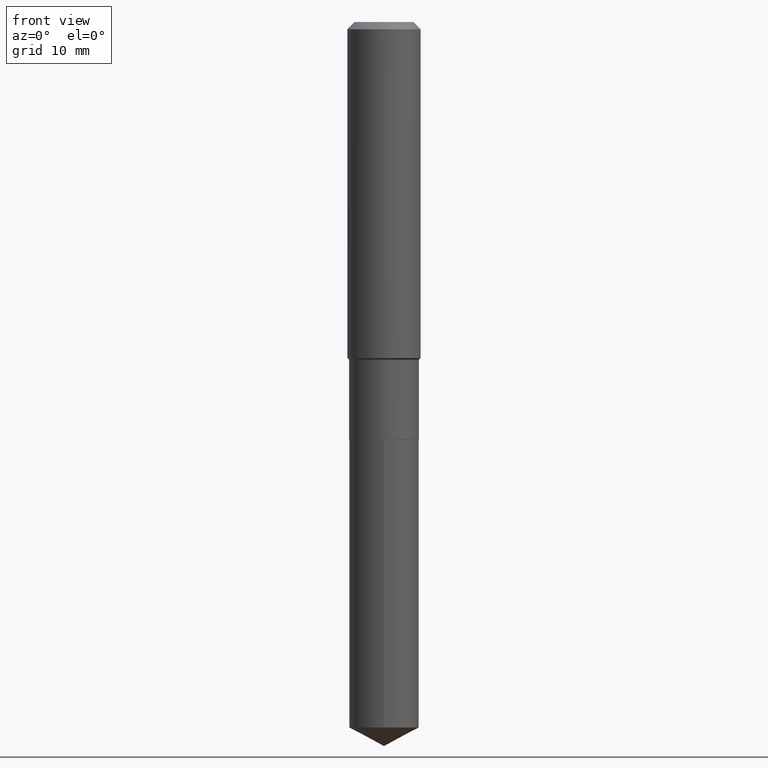
[diagram: clean part render]
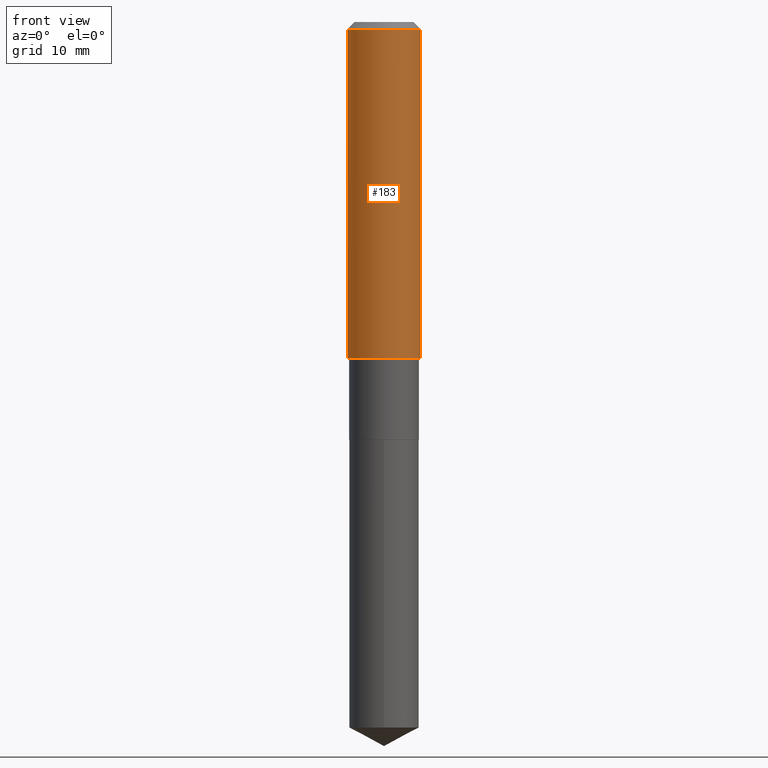
[diagram: same view with one face highlighted and labeled with its STEP entity id]
A machine part, front view. The second image highlights one B-rep face of the part: STEP entity #183.
In plain terms, the highlighted cylindrical surface (partial cylindrical patch) has radius 4.0005 mm, axis along (-0, 0, 1).
Its self-contained STEP definition (entity closure, byte-faithful):
#1 = ORIENTED_EDGE ( 'NONE', *, *, #132, .F. ) ;
#6 = EDGE_CURVE ( 'NONE', #382, #379, #113, .T. ) ;
#18 = CIRCLE ( 'NONE', #391, 0.1575000000000001676 ) ;
#19 = DIRECTION ( 'NONE',  ( 1.000000000000000000, -6.982962677686265922E-15, 0.000000000000000000 ) ) ;
#37 = AXIS2_PLACEMENT_3D ( 'NONE', #392, #48, #19 ) ;
#40 = CARTESIAN_POINT ( 'NONE',  ( 0.1575000000000000011, -1.209798283909146741E-15, -0.03150000000000019451 ) ) ;
#48 = DIRECTION ( 'NONE',  ( -2.445468806185136597E-29, 3.491481338843145583E-15, 1.000000000000000000 ) ) ;
#67 = DIRECTION ( 'NONE',  ( 1.000000000000000000, -6.982962677686267499E-15, 0.000000000000000000 ) ) ;
#73 = VECTOR ( 'NONE', #233, 39.37007874015748143 ) ;
#92 = CARTESIAN_POINT ( 'NONE',  ( 0.1575000000000001676, -6.138722489954014174E-15, -1.443199999999999816 ) ) ;
#113 = LINE ( 'NONE', #377, #295 ) ;
#131 = EDGE_LOOP ( 'NONE', ( #1, #298, #133, #457 ) ) ;
#132 = EDGE_CURVE ( 'NONE', #279, #464, #430, .T. ) ;
#133 = ORIENTED_EDGE ( 'NONE', *, *, #6, .T. ) ;
#146 = CARTESIAN_POINT ( 'NONE',  ( -0.1575000000000001676, -3.919801059396268302E-15, -1.443199999999999816 ) ) ;
#183 = ADVANCED_FACE ( 'NONE', ( #309 ), #306, .T. ) ;
#219 = CARTESIAN_POINT ( 'NONE',  ( 3.529300581086388319E-29, -5.038905868218426694E-15, -1.443199999999999816 ) ) ;
#226 = DIRECTION ( 'NONE',  ( -2.445468806185136877E-29, 3.491481338843145188E-15, 1.000000000000000000 ) ) ;
#233 = DIRECTION ( 'NONE',  ( -2.445468806185136877E-29, 3.491481338843145188E-15, 1.000000000000000000 ) ) ;
#243 = AXIS2_PLACEMENT_3D ( 'NONE', #313, #413, #451 ) ;
#279 = VERTEX_POINT ( 'NONE', #146 ) ;
#295 = VECTOR ( 'NONE', #226, 39.37007874015748143 ) ;
#298 = ORIENTED_EDGE ( 'NONE', *, *, #329, .T. ) ;
#306 = CYLINDRICAL_SURFACE ( 'NONE', #243, 0.1575000000000000844 ) ;
#309 = FACE_OUTER_BOUND ( 'NONE', #131, .T. ) ;
#313 = CARTESIAN_POINT ( 'NONE',  ( 0.000000000000000000, 0.000000000000000000, 0.000000000000000000 ) ) ;
#329 = EDGE_CURVE ( 'NONE', #279, #382, #18, .T. ) ;
#338 = DIRECTION ( 'NONE',  ( -2.445468806185136597E-29, 3.491481338843145583E-15, 1.000000000000000000 ) ) ;
#344 = CIRCLE ( 'NONE', #37, 0.1575000000000000011 ) ;
#352 = EDGE_CURVE ( 'NONE', #464, #379, #344, .T. ) ;
#363 = CARTESIAN_POINT ( 'NONE',  ( -0.1575000000000000844, 1.119104808822158392E-15, -7.747322767151481189E-30 ) ) ;
#377 = CARTESIAN_POINT ( 'NONE',  ( 0.1575000000000000844, -1.099816621735587677E-15, 7.679978421878603638E-30 ) ) ;
#379 = VERTEX_POINT ( 'NONE', #40 ) ;
#382 = VERTEX_POINT ( 'NONE', #92 ) ;
#389 = CARTESIAN_POINT ( 'NONE',  ( -0.1575000000000000011, -1.455338956373834684E-15, -0.03150000000000019451 ) ) ;
#391 = AXIS2_PLACEMENT_3D ( 'NONE', #219, #338, #67 ) ;
#392 = CARTESIAN_POINT ( 'NONE',  ( 7.703226739483226971E-31, -1.099816621735597538E-16, -0.03150000000000019451 ) ) ;
#413 = DIRECTION ( 'NONE',  ( -2.445468806185136597E-29, 3.491481338843145583E-15, 1.000000000000000000 ) ) ;
#430 = LINE ( 'NONE', #363, #73 ) ;
#451 = DIRECTION ( 'NONE',  ( 1.000000000000000000, -6.982962677686267499E-15, 4.876176775795936353E-29 ) ) ;
#457 = ORIENTED_EDGE ( 'NONE', *, *, #352, .F. ) ;
#464 = VERTEX_POINT ( 'NONE', #389 ) ;